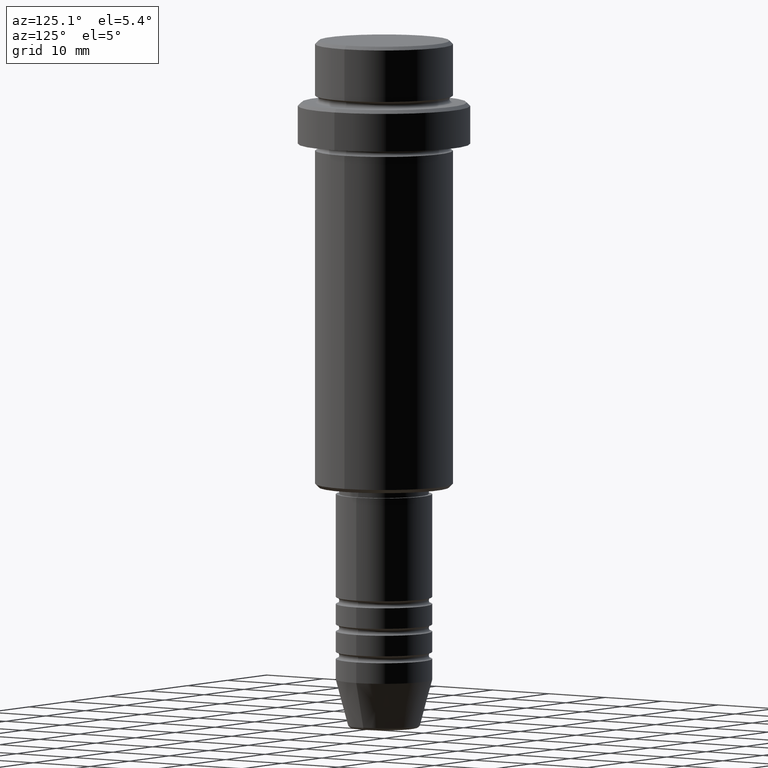
[diagram: clean part render]
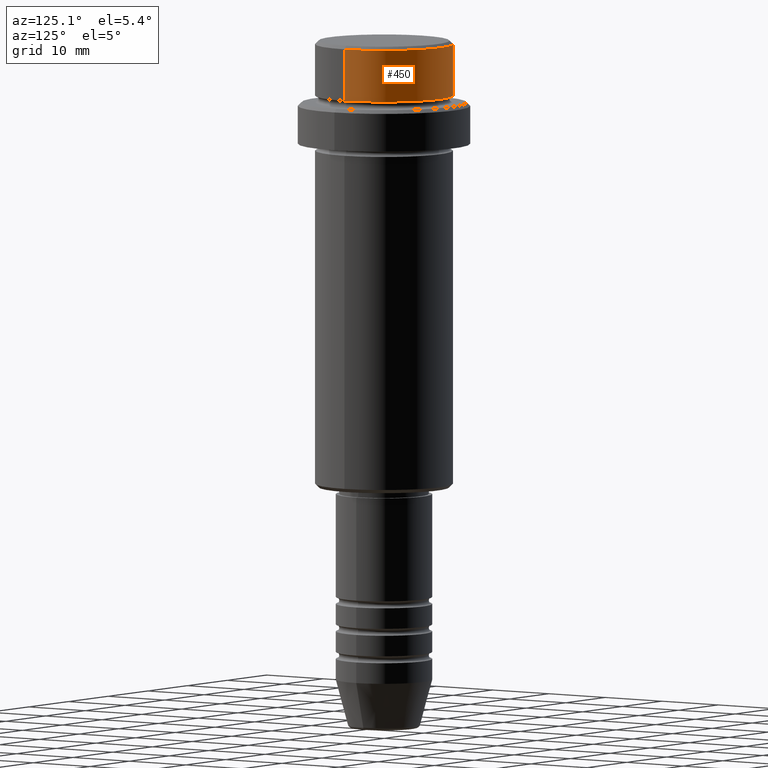
[diagram: same view with one face highlighted and labeled with its STEP entity id]
A machine part, auxiliary view. The second image highlights one B-rep face of the part: STEP entity #450.
In plain terms, the highlighted cylindrical surface (partial cylindrical patch) has radius 10 mm, axis along (-0, -0, 1).
Its self-contained STEP definition (entity closure, byte-faithful):
#43 = EDGE_CURVE ( 'NONE', #475, #444, #1125, .T. ) ;
#57 = ORIENTED_EDGE ( 'NONE', *, *, #43, .T. ) ;
#120 = EDGE_CURVE ( 'NONE', #198, #523, #731, .T. ) ;
#122 = ORIENTED_EDGE ( 'NONE', *, *, #506, .T. ) ;
#179 = DIRECTION ( 'NONE',  ( -0.000000000000000000, -0.000000000000000000, 1.000000000000000000 ) ) ;
#180 = AXIS2_PLACEMENT_3D ( 'NONE', #1272, #179, #1075 ) ;
#182 = EDGE_LOOP ( 'NONE', ( #824, #57, #122, #346 ) ) ;
#198 = VERTEX_POINT ( 'NONE', #270 ) ;
#219 = CARTESIAN_POINT ( 'NONE',  ( 0.000000000000000000, 0.000000000000000000, -0.5000000000000108802 ) ) ;
#252 = CIRCLE ( 'NONE', #180, 9.999999999999998224 ) ;
#257 = DIRECTION ( 'NONE',  ( -0.000000000000000000, -0.000000000000000000, 1.000000000000000000 ) ) ;
#270 = CARTESIAN_POINT ( 'NONE',  ( 9.999999999999998224, 0.000000000000000000, -7.999999999999998224 ) ) ;
#292 = CARTESIAN_POINT ( 'NONE',  ( -9.999999999999998224, 1.224646799147353059E-15, -7.999999999999998224 ) ) ;
#346 = ORIENTED_EDGE ( 'NONE', *, *, #120, .F. ) ;
#416 = VECTOR ( 'NONE', #257, 1000.000000000000000 ) ;
#444 = VERTEX_POINT ( 'NONE', #1077 ) ;
#450 = ADVANCED_FACE ( 'NONE', ( #604 ), #1192, .T. ) ;
#475 = VERTEX_POINT ( 'NONE', #292 ) ;
#505 = CARTESIAN_POINT ( 'NONE',  ( 0.000000000000000000, 0.000000000000000000, 0.000000000000000000 ) ) ;
#506 = EDGE_CURVE ( 'NONE', #444, #523, #1349, .T. ) ;
#523 = VERTEX_POINT ( 'NONE', #1200 ) ;
#604 = FACE_OUTER_BOUND ( 'NONE', #182, .T. ) ;
#625 = AXIS2_PLACEMENT_3D ( 'NONE', #505, #963, #948 ) ;
#688 = CARTESIAN_POINT ( 'NONE',  ( -9.999999999999998224, 1.224646799147353059E-15, 0.000000000000000000 ) ) ;
#731 = LINE ( 'NONE', #843, #1058 ) ;
#761 = DIRECTION ( 'NONE',  ( 0.000000000000000000, 0.000000000000000000, -1.000000000000000000 ) ) ;
#774 = AXIS2_PLACEMENT_3D ( 'NONE', #219, #761, #1316 ) ;
#824 = ORIENTED_EDGE ( 'NONE', *, *, #882, .T. ) ;
#843 = CARTESIAN_POINT ( 'NONE',  ( 9.999999999999998224, 0.000000000000000000, 0.000000000000000000 ) ) ;
#882 = EDGE_CURVE ( 'NONE', #198, #475, #252, .T. ) ;
#948 = DIRECTION ( 'NONE',  ( 1.000000000000000000, 0.000000000000000000, 0.000000000000000000 ) ) ;
#963 = DIRECTION ( 'NONE',  ( -0.000000000000000000, -0.000000000000000000, 1.000000000000000000 ) ) ;
#1058 = VECTOR ( 'NONE', #1369, 1000.000000000000000 ) ;
#1075 = DIRECTION ( 'NONE',  ( 1.000000000000000000, 0.000000000000000000, 0.000000000000000000 ) ) ;
#1077 = CARTESIAN_POINT ( 'NONE',  ( -9.999999999999998224, 1.224646799147353059E-15, -0.5000000000000108802 ) ) ;
#1125 = LINE ( 'NONE', #688, #416 ) ;
#1192 = CYLINDRICAL_SURFACE ( 'NONE', #625, 9.999999999999998224 ) ;
#1200 = CARTESIAN_POINT ( 'NONE',  ( 9.999999999999998224, 0.000000000000000000, -0.5000000000000108802 ) ) ;
#1272 = CARTESIAN_POINT ( 'NONE',  ( 0.000000000000000000, 0.000000000000000000, -7.999999999999998224 ) ) ;
#1316 = DIRECTION ( 'NONE',  ( 1.000000000000000000, 0.000000000000000000, 0.000000000000000000 ) ) ;
#1349 = CIRCLE ( 'NONE', #774, 9.999999999999998224 ) ;
#1369 = DIRECTION ( 'NONE',  ( -0.000000000000000000, -0.000000000000000000, 1.000000000000000000 ) ) ;